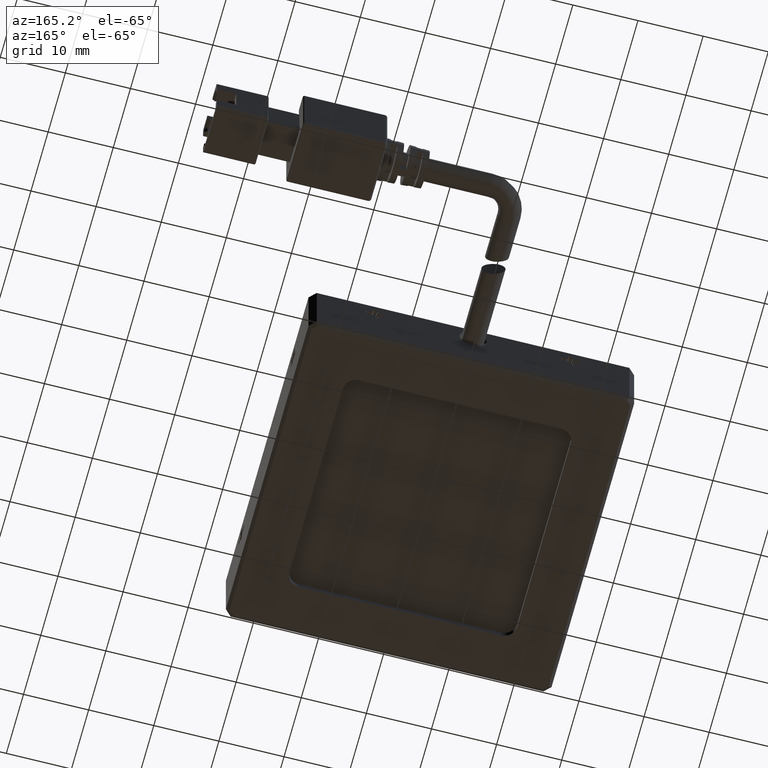
[diagram: clean part render]
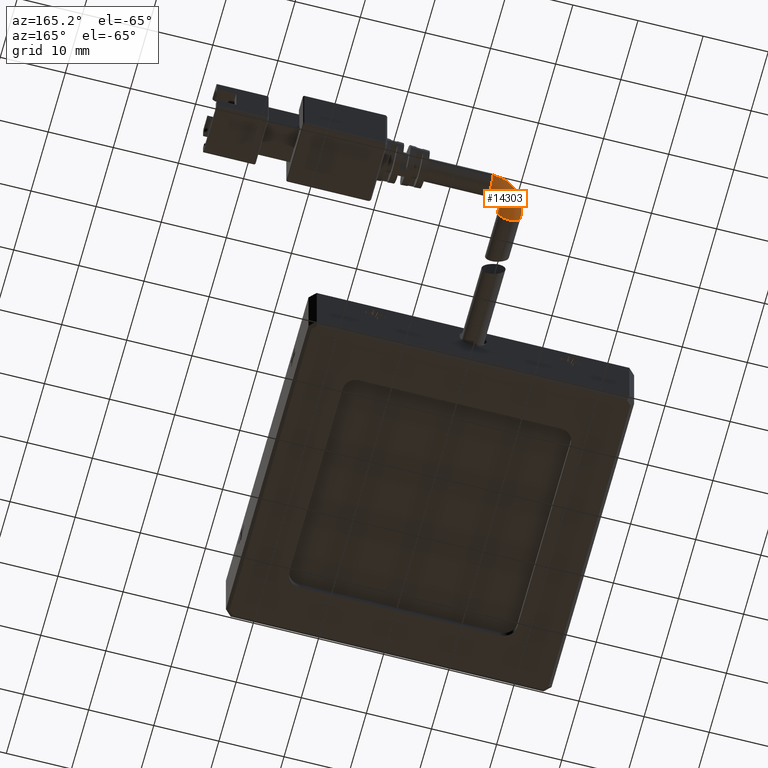
[diagram: same view with one face highlighted and labeled with its STEP entity id]
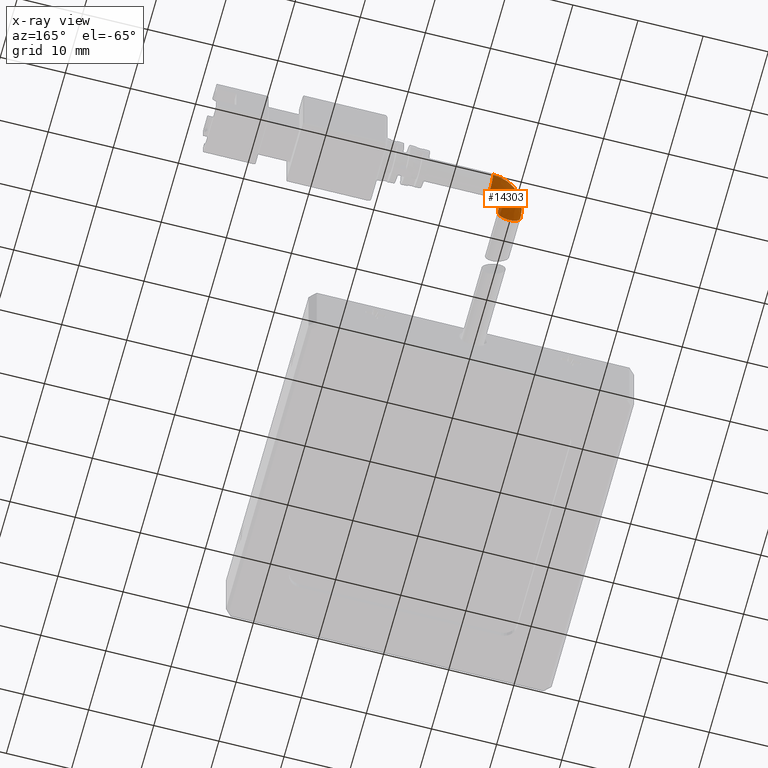
[diagram: x-ray of the same camera — body ghosted, the highlighted face saturated]
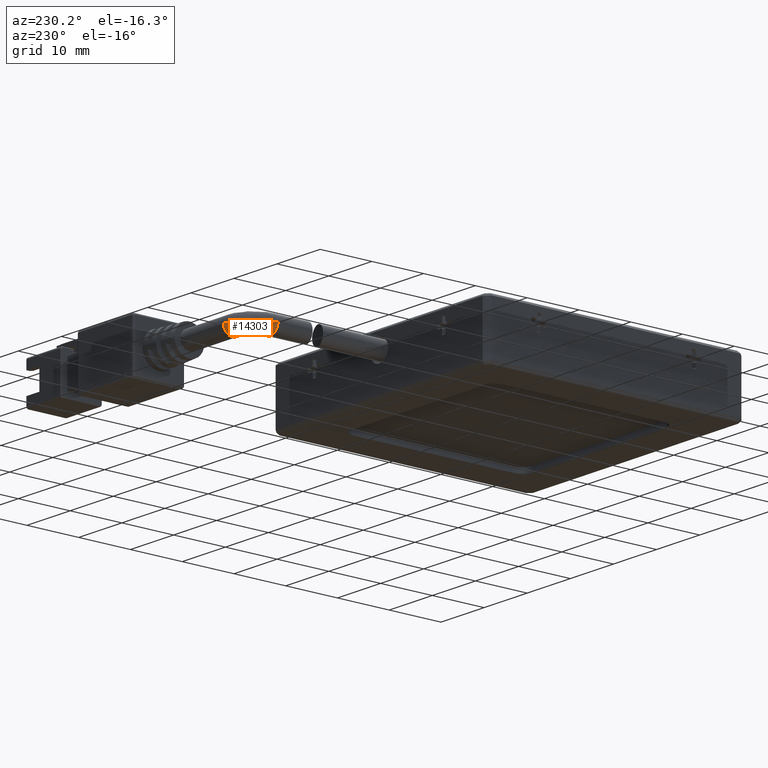
[diagram: same view with one face highlighted and labeled with its STEP entity id]
A machine part, auxiliary view. The second image highlights one B-rep face of the part: STEP entity #14303.
The next image is the same camera in x-ray: the body ghosted, the highlighted face saturated — about 0% of this face is hidden behind the body in this view.
A second angle (auxiliary view) of the same face is appended — the face is thin or edge-on in the first view.
In plain terms, the highlighted face is a freeform B-spline surface patch.
Its self-contained STEP definition (entity closure, byte-faithful):
#1130 = CARTESIAN_POINT ( 'NONE',  ( 23.26702531645571900, 62.46113924050633400, -1.250000000000000900 ) ) ;
#1149 = ORIENTED_EDGE ( 'NONE', *, *, #37274, .T. ) ;
#1438 = CIRCLE ( 'NONE', #10025, 5.749999999999998200 ) ;
#1767 = CARTESIAN_POINT ( 'NONE',  ( 23.26702531645571900, 65.96113924050634100, -1.250000000000000700 ) ) ;
#1957 = CARTESIAN_POINT ( 'NONE',  ( 23.26702531645571900, 65.96113924050634100, -1.250000000000000700 ) ) ;
#2069 = CARTESIAN_POINT ( 'NONE',  ( 21.94900583179518300, 62.46113924050633400, -1.250000000000000900 ) ) ;
#2641 = CIRCLE ( 'NONE', #37705, 1.749999999999998000 ) ;
#2783 = VERTEX_POINT ( 'NONE', #1957 ) ;
#2909 = DIRECTION ( 'NONE',  ( 1.000000000000000000, 0.0000000000000000000, 0.0000000000000000000 ) ) ;
#4466 = AXIS2_PLACEMENT_3D ( 'NONE', #19216, #41952, #22503 ) ;
#5158 = CARTESIAN_POINT ( 'NONE',  ( 17.51702531645571500, 63.57941125686104300, -1.250000000000000400 ) ) ;
#5301 = CARTESIAN_POINT ( 'NONE',  ( 21.01702531645571900, 60.21113924050633400, -1.250000000000000900 ) ) ;
#5371 = EDGE_CURVE ( 'NONE', #6071, #41263, #37388, .T. ) ;
#5507 = EDGE_LOOP ( 'NONE', ( #38944, #23341, #1149, #15344, #11949 ) ) ;
#6071 = VERTEX_POINT ( 'NONE', #34872 ) ;
#6143 = AXIS2_PLACEMENT_3D ( 'NONE', #22387, #2909, #25665 ) ;
#8424 = CARTESIAN_POINT ( 'NONE',  ( 23.26702531645571900, 65.96113924050632700, -4.750000000000000000 ) ) ;
#8473 = CIRCLE ( 'NONE', #6143, 1.750000000000001600 ) ;
#8845 = DIRECTION ( 'NONE',  ( 0.0000000000000000000, -2.465190328815661900E-032, 1.000000000000000000 ) ) ;
#10025 = AXIS2_PLACEMENT_3D ( 'NONE', #12437, #35260, #15712 ) ;
#11725 = CARTESIAN_POINT ( 'NONE',  ( 17.51702531645571500, 63.57941125686103600, -4.750000000000000000 ) ) ;
#11949 = ORIENTED_EDGE ( 'NONE', *, *, #14157, .F. ) ;
#12437 = CARTESIAN_POINT ( 'NONE',  ( 23.26702531645571900, 60.21113924050633400, -1.250000000000000700 ) ) ;
#14157 = EDGE_CURVE ( 'NONE', #2783, #41263, #1438, .T. ) ;
#14303 = ADVANCED_FACE ( 'NONE', ( #17161 ), #28738, .T. ) ;
#14400 = EDGE_CURVE ( 'NONE', #33490, #2783, #8473, .T. ) ;
#14966 = CARTESIAN_POINT ( 'NONE',  ( 23.26702531645571900, 62.46113924050633400, -4.750000000000000000 ) ) ;
#15344 = ORIENTED_EDGE ( 'NONE', *, *, #5371, .T. ) ;
#15712 = DIRECTION ( 'NONE',  ( 0.0000000000000000000, -1.000000000000000000, 0.0000000000000000000 ) ) ;
#17161 = FACE_OUTER_BOUND ( 'NONE', #5507, .T. ) ;
#18175 = DIRECTION ( 'NONE',  ( 1.836970198721029700E-016, 1.000000000000000000, 2.465190328815661900E-032 ) ) ;
#18250 = CARTESIAN_POINT ( 'NONE',  ( 21.01702531645571900, 61.52915872516687300, -4.750000000000000000 ) ) ;
#19216 = CARTESIAN_POINT ( 'NONE',  ( 19.26702531645571900, 60.21113924050633400, -1.250000000000000700 ) ) ;
#19346 = CARTESIAN_POINT ( 'NONE',  ( 17.51702531645572200, 60.21113924050633400, -1.250000000000000700 ) ) ;
#21551 = CARTESIAN_POINT ( 'NONE',  ( 23.26702531645571900, 62.46113924050633400, -1.250000000000000900 ) ) ;
#22387 = CARTESIAN_POINT ( 'NONE',  ( 23.26702531645571900, 64.21113924050634100, -1.250000000000000700 ) ) ;
#22503 = DIRECTION ( 'NONE',  ( -1.000000000000000000, 0.0000000000000000000, 0.0000000000000000000 ) ) ;
#23341 = ORIENTED_EDGE ( 'NONE', *, *, #24884, .T. ) ;
#24707 = CARTESIAN_POINT ( 'NONE',  ( 19.89875330010101400, 65.96113924050634100, -1.250000000000000400 ) ) ;
#24849 = CARTESIAN_POINT ( 'NONE',  ( 21.01702531645571500, 61.52915872516687300, -1.250000000000000900 ) ) ;
#24884 = EDGE_CURVE ( 'NONE', #33490, #38358, #41483, .T. ) ;
#25665 = DIRECTION ( 'NONE',  ( 0.0000000000000000000, 1.000000000000000000, -1.239088197126289600E-016 ) ) ;
#26590 = CARTESIAN_POINT ( 'NONE',  ( 21.01702531645572200, 60.21113924050633400, -1.250000000000000900 ) ) ;
#27988 = CARTESIAN_POINT ( 'NONE',  ( 17.51702531645571500, 60.21113924050633400, -1.250000000000000700 ) ) ;
#28409 = CARTESIAN_POINT ( 'NONE',  ( 23.26702531645571900, 60.21113924050633400, -1.250000000000000900 ) ) ;
#28738 =( BOUNDED_SURFACE ( )  B_SPLINE_SURFACE ( 3, 3, ( 
 ( #1767, #24707, #5158, #27988 ),
 ( #8424, #31245, #11725, #34532 ),
 ( #14966, #37796, #18250, #41036 ),
 ( #21551, #2069, #24849, #5301 ) ),
 .UNSPECIFIED., .F., .F., .F. ) 
 B_SPLINE_SURFACE_WITH_KNOTS ( ( 4, 4 ),
 ( 4, 4 ),
 ( 0.0000000000000000000, 1.000000000000000000 ),
 ( 0.0000000000000000000, 1.000000000000000000 ),
 .UNSPECIFIED. ) 
 GEOMETRIC_REPRESENTATION_ITEM ( )  RATIONAL_B_SPLINE_SURFACE ( (
 ( 1.000000000000000000, 0.8047378541243649400, 0.8047378541243649400, 1.000000000000000000),
 ( 0.3333333333333333700, 0.2682459513747883500, 0.2682459513747883500, 0.3333333333333333700),
 ( 0.3333333333333333700, 0.2682459513747883500, 0.2682459513747883500, 0.3333333333333333700),
 ( 1.000000000000000000, 0.8047378541243649400, 0.8047378541243649400, 1.000000000000000000) ) ) 
 REPRESENTATION_ITEM ( '' )  SURFACE ( )  );
#31245 = CARTESIAN_POINT ( 'NONE',  ( 19.89875330010101400, 65.96113924050632700, -4.750000000000000000 ) ) ;
#31683 = DIRECTION ( 'NONE',  ( 0.0000000000000000000, -1.000000000000000000, 0.0000000000000000000 ) ) ;
#33490 = VERTEX_POINT ( 'NONE', #1130 ) ;
#34532 = CARTESIAN_POINT ( 'NONE',  ( 17.51702531645571500, 60.21113924050633400, -4.750000000000000000 ) ) ;
#34872 = CARTESIAN_POINT ( 'NONE',  ( 19.26702531645571900, 60.21113924050633400, -3.000000000000000900 ) ) ;
#35260 = DIRECTION ( 'NONE',  ( 0.0000000000000000000, -2.465190328815661900E-032, 1.000000000000000000 ) ) ;
#36390 = AXIS2_PLACEMENT_3D ( 'NONE', #28409, #8845, #31683 ) ;
#37274 = EDGE_CURVE ( 'NONE', #38358, #6071, #2641, .T. ) ;
#37388 = CIRCLE ( 'NONE', #4466, 1.749999999999998000 ) ;
#37705 = AXIS2_PLACEMENT_3D ( 'NONE', #37734, #18175, #40973 ) ;
#37734 = CARTESIAN_POINT ( 'NONE',  ( 19.26702531645571900, 60.21113924050633400, -1.250000000000000700 ) ) ;
#37796 = CARTESIAN_POINT ( 'NONE',  ( 21.94900583179518000, 62.46113924050633400, -4.750000000000000000 ) ) ;
#38358 = VERTEX_POINT ( 'NONE', #26590 ) ;
#38944 = ORIENTED_EDGE ( 'NONE', *, *, #14400, .F. ) ;
#40973 = DIRECTION ( 'NONE',  ( -1.000000000000000000, 0.0000000000000000000, 0.0000000000000000000 ) ) ;
#41036 = CARTESIAN_POINT ( 'NONE',  ( 21.01702531645571500, 60.21113924050633400, -4.750000000000000000 ) ) ;
#41263 = VERTEX_POINT ( 'NONE', #19346 ) ;
#41483 = CIRCLE ( 'NONE', #36390, 2.249999999999995100 ) ;
#41952 = DIRECTION ( 'NONE',  ( 1.836970198721029700E-016, 1.000000000000000000, 2.465190328815661900E-032 ) ) ;